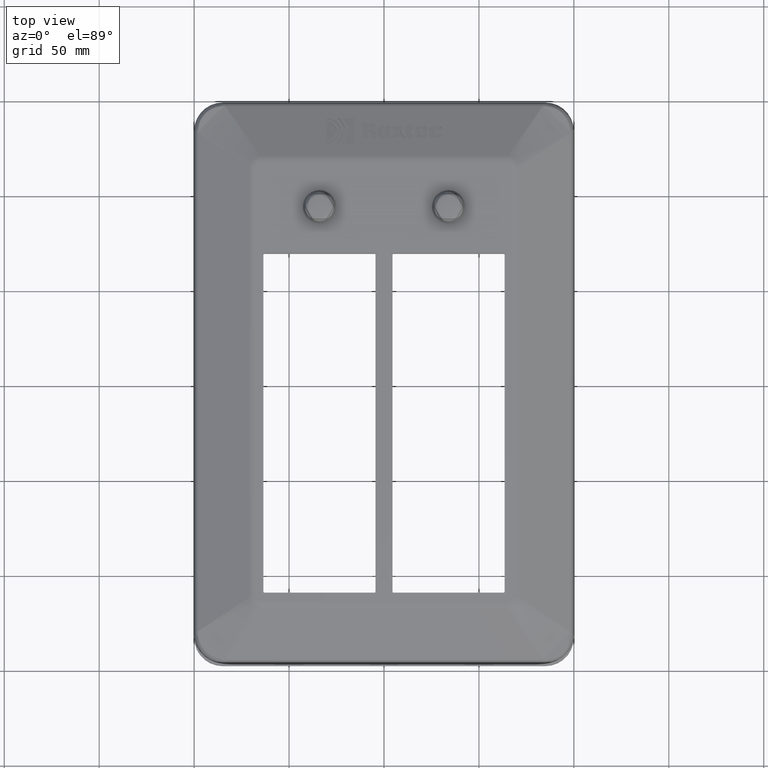
[diagram: clean part render]
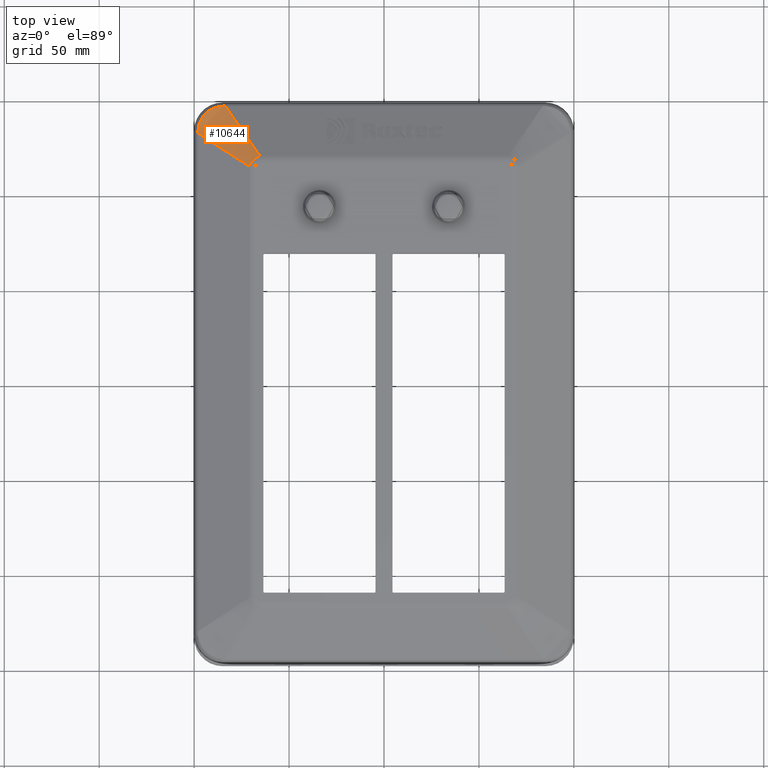
[diagram: same view with one face highlighted and labeled with its STEP entity id]
A machine part, top view. The second image highlights one B-rep face of the part: STEP entity #10644.
In plain terms, the highlighted face is a freeform B-spline surface patch.
Its self-contained STEP definition (entity closure, byte-faithful):
#93=(
BOUNDED_SURFACE()
B_SPLINE_SURFACE(1,2,((#20083,#20084,#20085),(#20086,#20087,#20088)),
 .UNSPECIFIED.,.F.,.F.,.F.)
B_SPLINE_SURFACE_WITH_KNOTS((2,2),(3,3),(-1.81146715291681,0.737740343756108),
(-2.1622354413169,-0.951681240969083),.UNSPECIFIED.)
GEOMETRIC_REPRESENTATION_ITEM()
RATIONAL_B_SPLINE_SURFACE(((1.,0.822344461986445,1.),(1.,0.822344461986445,
1.)))
REPRESENTATION_ITEM('')
SURFACE()
);
#442=B_SPLINE_CURVE_WITH_KNOTS('',3,(#19076,#19077,#19078,#19079),
 .UNSPECIFIED.,.F.,.F.,(4,4),(-0.128903528561643,0.),.UNSPECIFIED.);
#443=B_SPLINE_CURVE_WITH_KNOTS('',3,(#19117,#19118,#19119,#19120,#19121,
#19122,#19123),.UNSPECIFIED.,.F.,.F.,(4,1,1,1,4),(-1.85159710736901,-1.32256936240644,
-0.793541617443863,-0.529027744962576,0.),.UNSPECIFIED.);
#446=B_SPLINE_CURVE_WITH_KNOTS('',3,(#19159,#19160,#19161,#19162),
 .UNSPECIFIED.,.F.,.F.,(4,4),(1.09266330100541E-11,0.134962525243047),
 .UNSPECIFIED.);
#457=B_SPLINE_CURVE_WITH_KNOTS('',3,(#19928,#19929,#19930,#19931,#19932,
#19933,#19934,#19935,#19936,#19937,#19938,#19939,#19940,#19941,#19942,#19943,
#19944,#19945,#19946,#19947,#19948,#19949,#19950,#19951,#19952,#19953,#19954,
#19955,#19956,#19957,#19958,#19959,#19960,#19961,#19962,#19963,#19964,#19965,
#19966,#19967,#19968,#19969,#19970,#19971,#19972,#19973,#19974,#19975,#19976,
#19977,#19978,#19979,#19980,#19981,#19982,#19983,#19984,#19985,#19986,#19987,
#19988,#19989,#19990,#19991,#19992,#19993,#19994,#19995,#19996,#19997,#19998,
#19999,#20000,#20001,#20002,#20003,#20004,#20005,#20006,#20007,#20008,#20009,
#20010,#20011,#20012,#20013,#20014,#20015,#20016,#20017,#20018,#20019,#20020,
#20021,#20022,#20023,#20024,#20025,#20026,#20027,#20028,#20029,#20030,#20031,
#20032,#20033,#20034,#20035,#20036,#20037,#20038,#20039,#20040,#20041,#20042,
#20043,#20044,#20045,#20046,#20047,#20048,#20049,#20050,#20051,#20052,#20053,
#20054,#20055,#20056,#20057,#20058,#20059,#20060,#20061,#20062,#20063,#20064,
#20065,#20066),.UNSPECIFIED.,.F.,.F.,(4,3,3,3,3,3,3,3,3,3,3,3,3,3,3,3,3,
3,3,3,3,3,3,3,3,3,3,3,3,3,3,3,3,3,3,3,3,3,3,3,3,3,3,3,3,3,4),(-0.334122223181228,
-0.332026860645594,-0.329832894734479,-0.327474422373685,-0.32501156236143,
-0.322417180989709,-0.322189286639041,-0.31764491550023,-0.312875692589912,
-0.310256350096855,-0.304289881825761,-0.298132039852935,-0.291657950928669,
-0.286390477012481,-0.276673336092615,-0.26643893352095,-0.255876777821358,
-0.244767505264718,-0.238658730843734,-0.223983638066068,-0.208701805661864,
-0.192454679544821,-0.190926984674988,-0.171740016527248,-0.152325771139946,
-0.143195238506241,-0.126993290970994,-0.111228391654244,-0.0966234180951464,
-0.0954634923374939,-0.0835305557953072,-0.0726759750574034,-0.0621622350843817,
-0.052095340774189,-0.0477317461687471,-0.0408639950193607,-0.0342043144475981,
-0.0278587775992943,-0.0238658730843737,-0.0188747028000675,-0.0141183889791109,
-0.011932936542187,-0.0088785720898846,-0.00593789602838798,-0.00296894801419415,
-0.000294454095531526,-3.26873790871478E-16),.UNSPECIFIED.);
#1505=FACE_OUTER_BOUND('',#2175,.T.);
#2175=EDGE_LOOP('',(#9157,#9158,#9159,#9160,#9161,#9162));
#2750=LINE('',#18454,#3422);
#2841=LINE('',#18701,#3513);
#3422=VECTOR('',#13770,10.);
#3513=VECTOR('',#14009,10.);
#4765=VERTEX_POINT('',#18452);
#4766=VERTEX_POINT('',#18453);
#4838=VERTEX_POINT('',#18692);
#4840=VERTEX_POINT('',#18699);
#4864=VERTEX_POINT('',#19075);
#4865=VERTEX_POINT('',#19116);
#6135=EDGE_CURVE('',#4765,#4766,#2750,.T.);
#6254=EDGE_CURVE('',#4840,#4838,#2841,.T.);
#6296=EDGE_CURVE('',#4838,#4864,#442,.T.);
#6298=EDGE_CURVE('',#4864,#4865,#443,.T.);
#6303=EDGE_CURVE('',#4865,#4766,#446,.T.);
#6327=EDGE_CURVE('',#4765,#4840,#457,.T.);
#9157=ORIENTED_EDGE('',*,*,#6296,.F.);
#9158=ORIENTED_EDGE('',*,*,#6254,.F.);
#9159=ORIENTED_EDGE('',*,*,#6327,.F.);
#9160=ORIENTED_EDGE('',*,*,#6135,.T.);
#9161=ORIENTED_EDGE('',*,*,#6303,.F.);
#9162=ORIENTED_EDGE('',*,*,#6298,.F.);
#10644=ADVANCED_FACE('',(#1505),#93,.F.);
#13770=DIRECTION('',(-0.530161340264171,0.768349768498801,-0.35856322529944));
#14009=DIRECTION('',(-0.782692255466613,0.509897234831671,-0.356928064382169));
#18452=CARTESIAN_POINT('',(-65.4097194297703,119.108289028653,2.44946511996213));
#18453=CARTESIAN_POINT('',(-83.6508749127502,145.544746250362,-9.8875482501691));
#18454=CARTESIAN_POINT('',(-64.3000000000001,117.5,3.2));
#18692=CARTESIAN_POINT('',(-98.0219710076899,131.211381763967,-9.8979672347772));
#18699=CARTESIAN_POINT('',(-70.8813428143074,113.530190758506,2.47886646904549));
#18701=CARTESIAN_POINT('',(-69.3000000000001,112.5,3.2));
#19075=CARTESIAN_POINT('',(-97.9582955140178,132.615667401337,-9.9001815337796));
#19076=CARTESIAN_POINT('Ctrl Pts',(-98.0219710076899,131.211381763967,-9.8979672347771));
#19077=CARTESIAN_POINT('Ctrl Pts',(-97.9992112582556,131.683261735069,-9.8875881959472));
#19078=CARTESIAN_POINT('Ctrl Pts',(-97.9781071497197,132.151076652012,-9.8891622371244));
#19079=CARTESIAN_POINT('Ctrl Pts',(-97.9582955140178,132.615667401337,-9.9001815337796));
#19116=CARTESIAN_POINT('',(-85.1230808701117,145.473451194998,-9.8894764088664));
#19117=CARTESIAN_POINT('Ctrl Pts',(-97.9582955140178,132.615667401337,-9.9001815337796));
#19118=CARTESIAN_POINT('Ctrl Pts',(-97.8769873831146,134.522375458047,-9.9454053823377));
#19119=CARTESIAN_POINT('Ctrl Pts',(-96.9084176438892,138.290960929127,-10.0025799891044));
#19120=CARTESIAN_POINT('Ctrl Pts',(-93.8668984128204,142.06752269119,-10.0144066959491));
#19121=CARTESIAN_POINT('Ctrl Pts',(-89.8535441967881,144.652585305339,-9.9835339459535));
#19122=CARTESIAN_POINT('Ctrl Pts',(-87.0305188634798,145.387213979963,-9.9373747694792));
#19123=CARTESIAN_POINT('Ctrl Pts',(-85.1230808701117,145.473451194998,-9.8894764088664));
#19159=CARTESIAN_POINT('Ctrl Pts',(-85.1230808699935,145.473451195003,-9.8894764088634));
#19160=CARTESIAN_POINT('Ctrl Pts',(-84.6364662249977,145.495451538857,-9.8772568537099));
#19161=CARTESIAN_POINT('Ctrl Pts',(-84.1461056073162,145.519047496626,-9.8755554984255));
#19162=CARTESIAN_POINT('Ctrl Pts',(-83.6508749127502,145.544746250362,-9.8875482501691));
#19928=CARTESIAN_POINT('Ctrl Pts',(-65.4097194297703,119.108289028653,2.44946511996212));
#19929=CARTESIAN_POINT('Ctrl Pts',(-65.4451603483829,119.092165479374,2.45698944295896));
#19930=CARTESIAN_POINT('Ctrl Pts',(-65.4786247775215,119.076902581626,2.46384038059371));
#19931=CARTESIAN_POINT('Ctrl Pts',(-65.5103501335212,119.062433347894,2.47013693934776));
#19932=CARTESIAN_POINT('Ctrl Pts',(-65.5435684183752,119.047283222307,2.47672980097851));
#19933=CARTESIAN_POINT('Ctrl Pts',(-65.5748803863205,119.033002950239,2.48271491527268));
#19934=CARTESIAN_POINT('Ctrl Pts',(-65.6045936085145,119.019471196465,2.48821832888354));
#19935=CARTESIAN_POINT('Ctrl Pts',(-65.6365347671896,119.004924813995,2.49413439568544));
#19936=CARTESIAN_POINT('Ctrl Pts',(-65.6666286154794,118.991243270579,2.49949387433338));
#19937=CARTESIAN_POINT('Ctrl Pts',(-65.6952932676823,118.978228669819,2.50444059434989));
#19938=CARTESIAN_POINT('Ctrl Pts',(-65.7252266376251,118.964638033642,2.50960625968607));
#19939=CARTESIAN_POINT('Ctrl Pts',(-65.7536018335234,118.951774320742,2.51432179842999));
#19940=CARTESIAN_POINT('Ctrl Pts',(-65.7809284848545,118.939366976084,2.51873739845583));
#19941=CARTESIAN_POINT('Ctrl Pts',(-65.8097144307923,118.926297055872,2.5233887998327));
#19942=CARTESIAN_POINT('Ctrl Pts',(-65.8373370770102,118.913733328737,2.52770738923461));
#19943=CARTESIAN_POINT('Ctrl Pts',(-65.8644240337441,118.901315147968,2.53185402492357));
#19944=CARTESIAN_POINT('Ctrl Pts',(-65.8668033926478,118.900224316345,2.53221827162149));
#19945=CARTESIAN_POINT('Ctrl Pts',(-65.869178636321,118.899134581903,2.53258118243772));
#19946=CARTESIAN_POINT('Ctrl Pts',(-65.8715502004213,118.898045685553,2.53294286120787));
#19947=CARTESIAN_POINT('Ctrl Pts',(-65.9188408305727,118.87633233842,2.54015498629907));
#19948=CARTESIAN_POINT('Ctrl Pts',(-65.9644512930517,118.85516412398,2.54679764257733));
#19949=CARTESIAN_POINT('Ctrl Pts',(-66.0086049291911,118.834471245579,2.55297800251067));
#19950=CARTESIAN_POINT('Ctrl Pts',(-66.0549432511762,118.812754500459,2.55946416160457));
#19951=CARTESIAN_POINT('Ctrl Pts',(-66.0996772139829,118.791561165313,2.56544124473572));
#19952=CARTESIAN_POINT('Ctrl Pts',(-66.1430994074732,118.770765340516,2.57102074680109));
#19953=CARTESIAN_POINT('Ctrl Pts',(-66.1669476524996,118.759343901722,2.57408510909338));
#19954=CARTESIAN_POINT('Ctrl Pts',(-66.1904007890382,118.748041601147,2.57702932161919));
#19955=CARTESIAN_POINT('Ctrl Pts',(-66.2135110547584,118.73683243187,2.57987023734058));
#19956=CARTESIAN_POINT('Ctrl Pts',(-66.2661527644707,118.711299630028,2.58634141610296));
#19957=CARTESIAN_POINT('Ctrl Pts',(-66.3170256611519,118.686240461285,2.59228115233429));
#19958=CARTESIAN_POINT('Ctrl Pts',(-66.3663730235256,118.661580211523,2.59779262627312));
#19959=CARTESIAN_POINT('Ctrl Pts',(-66.4173031961949,118.636128987424,2.60348088002905));
#19960=CARTESIAN_POINT('Ctrl Pts',(-66.4666087081426,118.611102428343,2.60871303738668));
#19961=CARTESIAN_POINT('Ctrl Pts',(-66.5145903237475,118.586372919333,2.61358832459687));
#19962=CARTESIAN_POINT('Ctrl Pts',(-66.5650361207535,118.560373382306,2.6187139908724));
#19963=CARTESIAN_POINT('Ctrl Pts',(-66.6140187674936,118.534702060893,2.62344531783767));
#19964=CARTESIAN_POINT('Ctrl Pts',(-66.6619200024678,118.509164044677,2.62788048174685));
#19965=CARTESIAN_POINT('Ctrl Pts',(-66.7008935953133,118.488385702604,2.63148903740293));
#19966=CARTESIAN_POINT('Ctrl Pts',(-66.7391520101762,118.467694628106,2.63490120896051));
#19967=CARTESIAN_POINT('Ctrl Pts',(-66.7769138024021,118.446965864627,2.63816138086477));
#19968=CARTESIAN_POINT('Ctrl Pts',(-66.8465746421679,118.4087266025,2.64417556343516));
#19969=CARTESIAN_POINT('Ctrl Pts',(-66.9145080730667,118.370396720276,2.64966109388121));
#19970=CARTESIAN_POINT('Ctrl Pts',(-66.9808457902071,118.331972783827,2.65470444934645));
#19971=CARTESIAN_POINT('Ctrl Pts',(-67.0507147885575,118.291503469113,2.66001627209028));
#19972=CARTESIAN_POINT('Ctrl Pts',(-67.1188138591954,118.250929780093,2.66483779793149));
#19973=CARTESIAN_POINT('Ctrl Pts',(-67.1853310922512,118.210201735581,2.66925643713716));
#19974=CARTESIAN_POINT('Ctrl Pts',(-67.253978516204,118.168169389827,2.67381658170288));
#19975=CARTESIAN_POINT('Ctrl Pts',(-67.3209415189163,118.12597239895,2.67794777899462));
#19976=CARTESIAN_POINT('Ctrl Pts',(-67.3864578931143,118.083510581558,2.68172917335818));
#19977=CARTESIAN_POINT('Ctrl Pts',(-67.4553679980767,118.038849253315,2.6857064429444));
#19978=CARTESIAN_POINT('Ctrl Pts',(-67.5226780532531,117.993894790828,2.68929696491068));
#19979=CARTESIAN_POINT('Ctrl Pts',(-67.5886932946669,117.94848436861,2.69257123878829));
#19980=CARTESIAN_POINT('Ctrl Pts',(-67.6249938009411,117.923514054462,2.6943716987562));
#19981=CARTESIAN_POINT('Ctrl Pts',(-67.6609032576594,117.898405089209,2.69607614079463));
#19982=CARTESIAN_POINT('Ctrl Pts',(-67.6964752370275,117.873125203883,2.69769334609457));
#19983=CARTESIAN_POINT('Ctrl Pts',(-67.7819297098134,117.812395401636,2.7015783541472));
#19984=CARTESIAN_POINT('Ctrl Pts',(-67.8653607379454,117.750762569322,2.70494789061913));
#19985=CARTESIAN_POINT('Ctrl Pts',(-67.9469157922135,117.688185004231,2.70787567164498));
#19986=CARTESIAN_POINT('Ctrl Pts',(-68.0318427286168,117.6230201786,2.7109245013615));
#19987=CARTESIAN_POINT('Ctrl Pts',(-68.1147359146936,117.556830522301,2.71349456339145));
#19988=CARTESIAN_POINT('Ctrl Pts',(-68.1957886651788,117.489523416554,2.71564610033237));
#19989=CARTESIAN_POINT('Ctrl Pts',(-68.2819612015889,117.417964783615,2.71793354146509));
#19990=CARTESIAN_POINT('Ctrl Pts',(-68.3660541563326,117.345142659939,2.71974832161798));
#19991=CARTESIAN_POINT('Ctrl Pts',(-68.4483196732314,117.270901214242,2.72113182791657));
#19992=CARTESIAN_POINT('Ctrl Pts',(-68.4560549863708,117.263920393455,2.72126191710647));
#19993=CARTESIAN_POINT('Ctrl Pts',(-68.4637741512068,117.256926996274,2.72138816927733));
#19994=CARTESIAN_POINT('Ctrl Pts',(-68.4714773819684,117.249920876772,2.72151060384493));
#19995=CARTESIAN_POINT('Ctrl Pts',(-68.5682255259712,117.1619280489,2.72304831153456));
#19996=CARTESIAN_POINT('Ctrl Pts',(-68.6624307261492,117.071963249691,2.7239853739421));
#19997=CARTESIAN_POINT('Ctrl Pts',(-68.7542869115094,116.979859692741,2.72435548277438));
#19998=CARTESIAN_POINT('Ctrl Pts',(-68.8472311697784,116.886665132668,2.72472997569241));
#19999=CARTESIAN_POINT('Ctrl Pts',(-68.9377719146331,116.791279398177,2.72452411390085));
#20000=CARTESIAN_POINT('Ctrl Pts',(-69.0260995918064,116.693506361643,2.72372866107709));
#20001=CARTESIAN_POINT('Ctrl Pts',(-69.0676401576539,116.64752363695,2.72335455908027));
#20002=CARTESIAN_POINT('Ctrl Pts',(-69.1086909427613,116.601012685498,2.72284940985965));
#20003=CARTESIAN_POINT('Ctrl Pts',(-69.1492695409168,116.55395278192,2.72220887028783));
#20004=CARTESIAN_POINT('Ctrl Pts',(-69.2212754517157,116.470445924285,2.7210722456293));
#20005=CARTESIAN_POINT('Ctrl Pts',(-69.2917748386965,116.38523145604,2.7195126562845));
#20006=CARTESIAN_POINT('Ctrl Pts',(-69.3609177608383,116.298055804733,2.71749789863401));
#20007=CARTESIAN_POINT('Ctrl Pts',(-69.4281955497375,116.213231720299,2.71553748915617));
#20008=CARTESIAN_POINT('Ctrl Pts',(-69.4941896773512,116.126550026393,2.71314591068273));
#20009=CARTESIAN_POINT('Ctrl Pts',(-69.5590004260245,116.037794384426,2.71026504304684));
#20010=CARTESIAN_POINT('Ctrl Pts',(-69.6190426281153,115.955569069941,2.70759613950334));
#20011=CARTESIAN_POINT('Ctrl Pts',(-69.6780692781957,115.871563378625,2.7045069233916));
#20012=CARTESIAN_POINT('Ctrl Pts',(-69.7361228235973,115.785628253287,2.70093098105572));
#20013=CARTESIAN_POINT('Ctrl Pts',(-69.7407334312346,115.778803292943,2.7006469800196));
#20014=CARTESIAN_POINT('Ctrl Pts',(-69.7453378797008,115.771966177226,2.70035989930843));
#20015=CARTESIAN_POINT('Ctrl Pts',(-69.7499361789673,115.765116839341,2.70006970072846));
#20016=CARTESIAN_POINT('Ctrl Pts',(-69.797241976763,115.694653093027,2.69708423272191));
#20017=CARTESIAN_POINT('Ctrl Pts',(-69.843854788836,115.622938797879,2.69377806917942));
#20018=CARTESIAN_POINT('Ctrl Pts',(-69.8899647383251,115.549618677424,2.69008521563002));
#20019=CARTESIAN_POINT('Ctrl Pts',(-69.9319078231459,115.482924350811,2.68672607793047));
#20020=CARTESIAN_POINT('Ctrl Pts',(-69.9734346963014,115.414901159539,2.68304660853795));
#20021=CARTESIAN_POINT('Ctrl Pts',(-70.014651975919,115.345304586907,2.67897792379387));
#20022=CARTESIAN_POINT('Ctrl Pts',(-70.0545750066429,115.277893391088,2.67503699834827));
#20023=CARTESIAN_POINT('Ctrl Pts',(-70.0942077887718,115.2090057468,2.6707307729285));
#20024=CARTESIAN_POINT('Ctrl Pts',(-70.1336101915521,115.13844568711,2.66598104332241));
#20025=CARTESIAN_POINT('Ctrl Pts',(-70.1713379483136,115.070884508572,2.66143318251654));
#20026=CARTESIAN_POINT('Ctrl Pts',(-70.2088545822086,115.001789831501,2.65647854963322));
#20027=CARTESIAN_POINT('Ctrl Pts',(-70.246176163502,114.93101788092,2.65103620823815));
#20028=CARTESIAN_POINT('Ctrl Pts',(-70.2623535709309,114.900341081079,2.64867717169513));
#20029=CARTESIAN_POINT('Ctrl Pts',(-70.2784938455376,114.869349531171,2.64622635449626));
#20030=CARTESIAN_POINT('Ctrl Pts',(-70.2945959590749,114.838033444793,2.64367652431462));
#20031=CARTESIAN_POINT('Ctrl Pts',(-70.3199386681835,114.788745848749,2.63966341110314));
#20032=CARTESIAN_POINT('Ctrl Pts',(-70.3451779049248,114.738664567023,2.63540946555731));
#20033=CARTESIAN_POINT('Ctrl Pts',(-70.3705129113468,114.687401515695,2.63083420501303));
#20034=CARTESIAN_POINT('Ctrl Pts',(-70.3950803492729,114.637691568501,2.62639756001894));
#20035=CARTESIAN_POINT('Ctrl Pts',(-70.4197380354175,114.58687011055,2.6216586925901));
#20036=CARTESIAN_POINT('Ctrl Pts',(-70.4446308357699,114.534609459122,2.61652882627176));
#20037=CARTESIAN_POINT('Ctrl Pts',(-70.468349418094,114.484813994342,2.61164094082454));
#20038=CARTESIAN_POINT('Ctrl Pts',(-70.4922815439878,114.433711734061,2.60639796346321));
#20039=CARTESIAN_POINT('Ctrl Pts',(-70.5165167470899,114.381046370478,2.60071033400675));
#20040=CARTESIAN_POINT('Ctrl Pts',(-70.5317666548911,114.347906894172,2.59713141517312));
#20041=CARTESIAN_POINT('Ctrl Pts',(-70.5471358549086,114.314149049171,2.59337618647493));
#20042=CARTESIAN_POINT('Ctrl Pts',(-70.5626385173235,114.2797154664,2.58941983822276));
#20043=CARTESIAN_POINT('Ctrl Pts',(-70.582016999249,114.236673146087,2.58447436362981));
#20044=CARTESIAN_POINT('Ctrl Pts',(-70.6016109079522,114.192568380627,2.57921398596194));
#20045=CARTESIAN_POINT('Ctrl Pts',(-70.6215792371947,114.147052304782,2.57353497308583));
#20046=CARTESIAN_POINT('Ctrl Pts',(-70.6406079689244,114.103677960032,2.5681231826853));
#20047=CARTESIAN_POINT('Ctrl Pts',(-70.6599768159359,114.059021826047,2.56233114321302));
#20048=CARTESIAN_POINT('Ctrl Pts',(-70.6797874405688,114.012810272176,2.55605756928848));
#20049=CARTESIAN_POINT('Ctrl Pts',(-70.6888901153524,113.99157677985,2.55317495936455));
#20050=CARTESIAN_POINT('Ctrl Pts',(-70.6980855388734,113.970015316629,2.55019052791348));
#20051=CARTESIAN_POINT('Ctrl Pts',(-70.7073807307625,113.94810166073,2.54709364945595));
#20052=CARTESIAN_POINT('Ctrl Pts',(-70.7203715894075,113.917475374626,2.54276548595352));
#20053=CARTESIAN_POINT('Ctrl Pts',(-70.7335233651506,113.886199355687,2.53823273764086));
#20054=CARTESIAN_POINT('Ctrl Pts',(-70.747098933697,113.853766250657,2.53336636260418));
#20055=CARTESIAN_POINT('Ctrl Pts',(-70.7601691975994,113.822540358316,2.52868112192643));
#20056=CARTESIAN_POINT('Ctrl Pts',(-70.7736325073216,113.790241683444,2.52368661730705));
#20057=CARTESIAN_POINT('Ctrl Pts',(-70.787688600433,113.756444533393,2.51825606758089));
#20058=CARTESIAN_POINT('Ctrl Pts',(-70.8018798302243,113.722322454174,2.5127733080085));
#20059=CARTESIAN_POINT('Ctrl Pts',(-70.8166759576516,113.686672339124,2.50684617591304));
#20060=CARTESIAN_POINT('Ctrl Pts',(-70.8322393971477,113.649090786525,2.50033132811823));
#20061=CARTESIAN_POINT('Ctrl Pts',(-70.8462592870505,113.615236494231,2.49446260939195));
#20062=CARTESIAN_POINT('Ctrl Pts',(-70.8609016824736,113.579814932889,2.48811683670645));
#20063=CARTESIAN_POINT('Ctrl Pts',(-70.8762483652264,113.542561930037,2.48117950853382));
#20064=CARTESIAN_POINT('Ctrl Pts',(-70.8779379909003,113.538460481467,2.48041572863579));
#20065=CARTESIAN_POINT('Ctrl Pts',(-70.8796361141984,113.534336866632,2.4796447687695));
#20066=CARTESIAN_POINT('Ctrl Pts',(-70.8813428143071,113.530190758506,2.47886646904565));
#20083=CARTESIAN_POINT('Ctrl Pts',(-70.850808377262,113.510298617109,2.49279096802386));
#20084=CARTESIAN_POINT('Ctrl Pts',(-68.523235277319,116.740946525067,3.55422495496856));
#20085=CARTESIAN_POINT('Ctrl Pts',(-65.4097194297703,119.108289028653,2.44946511996212));
#20086=CARTESIAN_POINT('Ctrl Pts',(-101.158805443488,133.254922113021,-11.3284454791148));
#20087=CARTESIAN_POINT('Ctrl Pts',(-94.6572261593547,142.27904836419,-8.3635559032888));
#20088=CARTESIAN_POINT('Ctrl Pts',(-85.9602833498089,148.891714999723,-11.4494669998708));